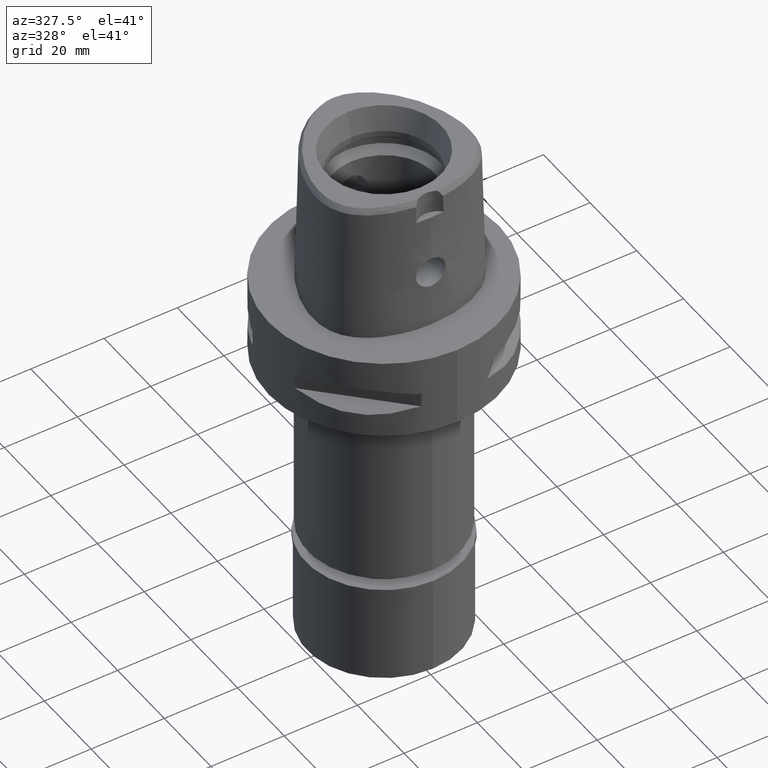
[diagram: clean part render]
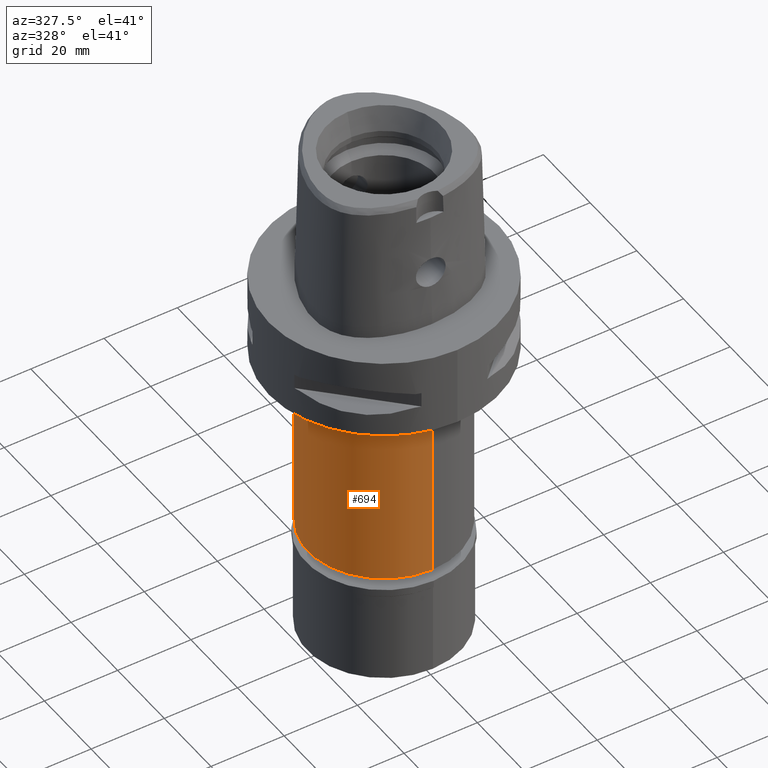
[diagram: same view with one face highlighted and labeled with its STEP entity id]
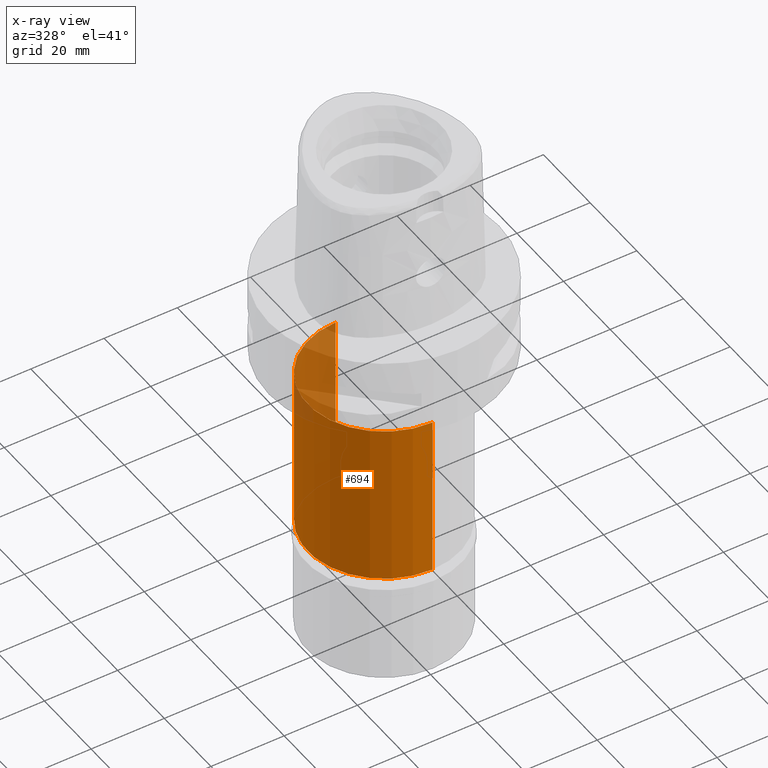
[diagram: x-ray of the same camera — body ghosted, the highlighted face saturated]
A machine part, auxiliary view. The second image highlights one B-rep face of the part: STEP entity #694.
The next image is the same camera in x-ray: the body ghosted, the highlighted face saturated — about 14% of this face is hidden behind the body in this view.
In plain terms, the highlighted cylindrical surface (partial cylindrical patch) has radius 20.8 mm, axis along (0, 0, -1).
Its self-contained STEP definition (entity closure, byte-faithful):
#181 = CIRCLE ( 'NONE', #909, 20.80000000000000071 ) ;
#257 = CARTESIAN_POINT ( 'NONE',  ( 0.0000000000000000000, 0.0000000000000000000, 4.700000000000000178 ) ) ;
#333 = VECTOR ( 'NONE', #4700, 1000.000000000000000 ) ;
#386 = DIRECTION ( 'NONE',  ( 0.0000000000000000000, -1.000000000000000000, 0.0000000000000000000 ) ) ;
#433 = DIRECTION ( 'NONE',  ( 0.0000000000000000000, 0.0000000000000000000, -1.000000000000000000 ) ) ;
#510 = ORIENTED_EDGE ( 'NONE', *, *, #3509, .F. ) ;
#562 = AXIS2_PLACEMENT_3D ( 'NONE', #4235, #433, #386 ) ;
#694 = ADVANCED_FACE ( 'NONE', ( #4526 ), #2588, .T. ) ;
#909 = AXIS2_PLACEMENT_3D ( 'NONE', #1408, #4444, #4118 ) ;
#1283 = CARTESIAN_POINT ( 'NONE',  ( 0.0000000000000000000, 20.80000000000000071, -74.89999999999999147 ) ) ;
#1286 = EDGE_LOOP ( 'NONE', ( #4684, #510, #1560, #3178 ) ) ;
#1321 = DIRECTION ( 'NONE',  ( 0.0000000000000000000, 0.0000000000000000000, -1.000000000000000000 ) ) ;
#1408 = CARTESIAN_POINT ( 'NONE',  ( 0.0000000000000000000, 0.0000000000000000000, -74.89999999999999147 ) ) ;
#1560 = ORIENTED_EDGE ( 'NONE', *, *, #1892, .T. ) ;
#1600 = CARTESIAN_POINT ( 'NONE',  ( 0.0000000000000000000, -20.80000000000000071, -74.89999999999999147 ) ) ;
#1892 = EDGE_CURVE ( 'NONE', #4522, #2903, #2652, .T. ) ;
#1894 = LINE ( 'NONE', #3433, #333 ) ;
#1938 = VERTEX_POINT ( 'NONE', #1283 ) ;
#1956 = CARTESIAN_POINT ( 'NONE',  ( 0.0000000000000000000, 20.80000000000000071, -30.00000000000000000 ) ) ;
#2190 = CARTESIAN_POINT ( 'NONE',  ( 0.0000000000000000000, -20.80000000000000071, -30.00000000000000000 ) ) ;
#2301 = EDGE_CURVE ( 'NONE', #2903, #1938, #4324, .T. ) ;
#2517 = EDGE_CURVE ( 'NONE', #1938, #3900, #181, .T. ) ;
#2588 = CYLINDRICAL_SURFACE ( 'NONE', #3391, 20.80000000000000071 ) ;
#2652 = CIRCLE ( 'NONE', #562, 20.80000000000000071 ) ;
#2796 = CARTESIAN_POINT ( 'NONE',  ( 0.0000000000000000000, 20.80000000000000071, -30.00000000000000000 ) ) ;
#2903 = VERTEX_POINT ( 'NONE', #1956 ) ;
#3178 = ORIENTED_EDGE ( 'NONE', *, *, #2301, .T. ) ;
#3391 = AXIS2_PLACEMENT_3D ( 'NONE', #257, #4450, #4914 ) ;
#3433 = CARTESIAN_POINT ( 'NONE',  ( 0.0000000000000000000, -20.80000000000000071, -30.00000000000000000 ) ) ;
#3509 = EDGE_CURVE ( 'NONE', #4522, #3900, #1894, .T. ) ;
#3900 = VERTEX_POINT ( 'NONE', #1600 ) ;
#4118 = DIRECTION ( 'NONE',  ( 0.0000000000000000000, 1.000000000000000000, 0.0000000000000000000 ) ) ;
#4235 = CARTESIAN_POINT ( 'NONE',  ( 0.0000000000000000000, 0.0000000000000000000, -30.00000000000000000 ) ) ;
#4324 = LINE ( 'NONE', #2796, #4819 ) ;
#4444 = DIRECTION ( 'NONE',  ( 0.0000000000000000000, 0.0000000000000000000, 1.000000000000000000 ) ) ;
#4450 = DIRECTION ( 'NONE',  ( 0.0000000000000000000, 0.0000000000000000000, -1.000000000000000000 ) ) ;
#4522 = VERTEX_POINT ( 'NONE', #2190 ) ;
#4526 = FACE_OUTER_BOUND ( 'NONE', #1286, .T. ) ;
#4684 = ORIENTED_EDGE ( 'NONE', *, *, #2517, .T. ) ;
#4700 = DIRECTION ( 'NONE',  ( 0.0000000000000000000, 0.0000000000000000000, -1.000000000000000000 ) ) ;
#4819 = VECTOR ( 'NONE', #1321, 1000.000000000000000 ) ;
#4914 = DIRECTION ( 'NONE',  ( 0.0000000000000000000, -1.000000000000000000, 0.0000000000000000000 ) ) ;